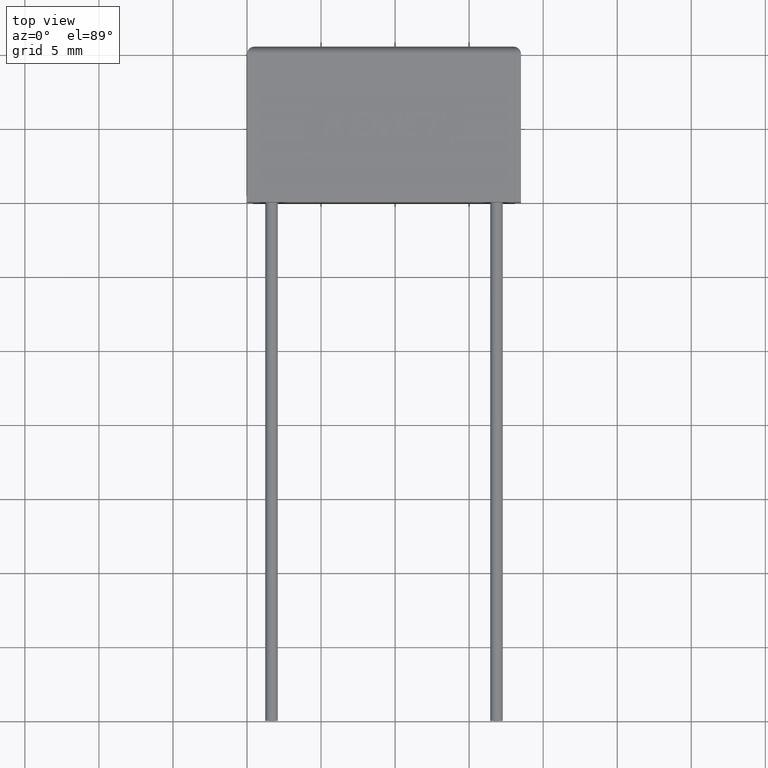
[diagram: clean part render]
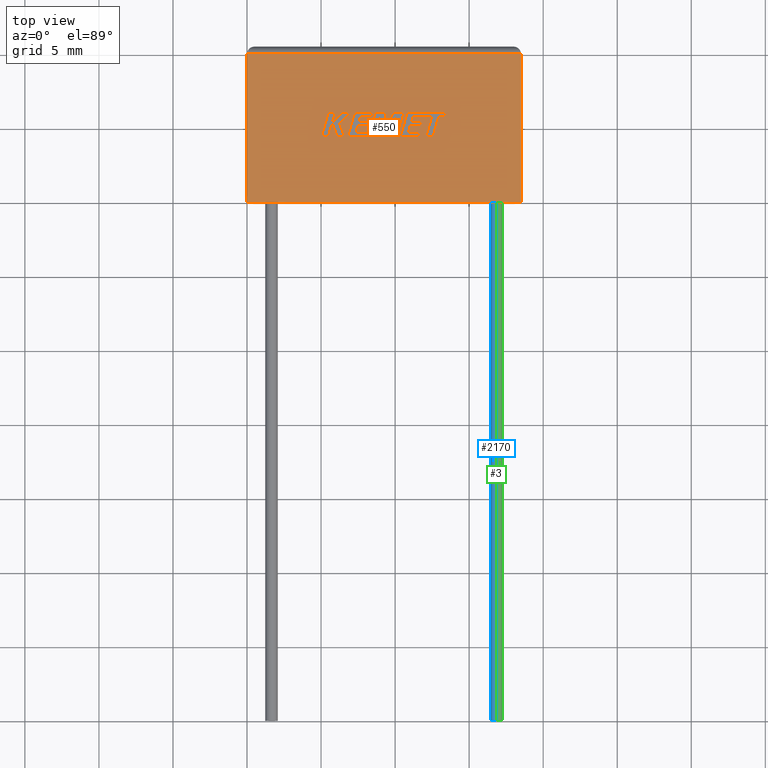
[diagram: same view with three faces highlighted in distinct colors, each labeled with its STEP entity id]
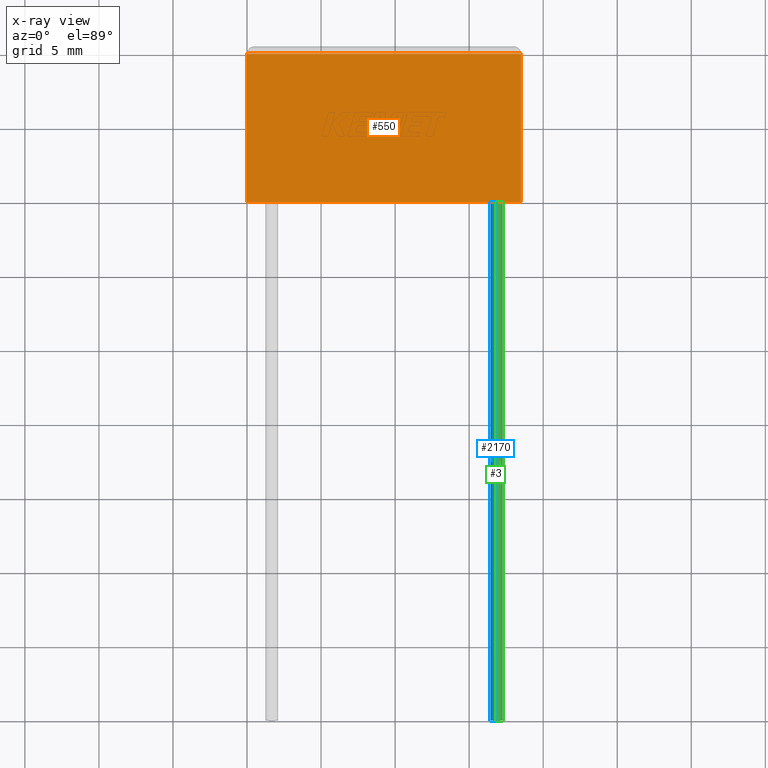
[diagram: x-ray of the same camera — body ghosted, the three highlighted faces saturated]
A machine part, top view with three faces highlighted in distinct colors.
The next image is the same camera in x-ray (body ghosted, the three faces saturated) — at least one of them is partly hidden behind the body in this view.
Their STEP definitions:

[orange] entity #550 — the highlighted planar face has unit normal (0, 0, -1).
#28 = LINE ( 'NONE', #1537, #1382 ) ;
#71 = VERTEX_POINT ( 'NONE', #2208 ) ;
#82 = EDGE_CURVE ( 'NONE', #71, #1536, #95, .T. ) ;
#95 = LINE ( 'NONE', #1103, #718 ) ;
#300 = CARTESIAN_POINT ( 'NONE',  ( 0.0000000000000000000, 10.00000000000000000, 5.200000000000000200 ) ) ;
#550 = ADVANCED_FACE ( 'NONE', ( #594 ), #879, .F. ) ;
#594 = FACE_OUTER_BOUND ( 'NONE', #1491, .T. ) ;
#672 = CARTESIAN_POINT ( 'NONE',  ( 18.50000000000000000, 9.999999999999996400, 5.200000000000000200 ) ) ;
#695 = CARTESIAN_POINT ( 'NONE',  ( 0.0000000000000000000, 0.0000000000000000000, 5.200000000000000200 ) ) ;
#718 = VECTOR ( 'NONE', #1636, 1000.000000000000000 ) ;
#787 = ORIENTED_EDGE ( 'NONE', *, *, #923, .T. ) ;
#879 = PLANE ( 'NONE',  #927 ) ;
#910 = DIRECTION ( 'NONE',  ( 0.0000000000000000000, 0.0000000000000000000, -1.000000000000000000 ) ) ;
#923 = EDGE_CURVE ( 'NONE', #1778, #1442, #1257, .T. ) ;
#927 = AXIS2_PLACEMENT_3D ( 'NONE', #695, #910, #1288 ) ;
#1020 = ORIENTED_EDGE ( 'NONE', *, *, #1130, .T. ) ;
#1064 = DIRECTION ( 'NONE',  ( -1.000000000000000000, 0.0000000000000000000, 0.0000000000000000000 ) ) ;
#1103 = CARTESIAN_POINT ( 'NONE',  ( 18.50000000000000000, 0.0000000000000000000, 5.200000000000000200 ) ) ;
#1130 = EDGE_CURVE ( 'NONE', #1442, #71, #28, .T. ) ;
#1247 = VECTOR ( 'NONE', #1064, 1000.000000000000000 ) ;
#1257 = LINE ( 'NONE', #2418, #1719 ) ;
#1288 = DIRECTION ( 'NONE',  ( -1.000000000000000000, 0.0000000000000000000, -0.0000000000000000000 ) ) ;
#1382 = VECTOR ( 'NONE', #2301, 1000.000000000000000 ) ;
#1442 = VERTEX_POINT ( 'NONE', #1792 ) ;
#1488 = EDGE_CURVE ( 'NONE', #1536, #1778, #1758, .T. ) ;
#1491 = EDGE_LOOP ( 'NONE', ( #2398, #2124, #787, #1020 ) ) ;
#1536 = VERTEX_POINT ( 'NONE', #672 ) ;
#1537 = CARTESIAN_POINT ( 'NONE',  ( 0.0000000000000000000, 0.0000000000000000000, 5.200000000000000200 ) ) ;
#1636 = DIRECTION ( 'NONE',  ( 0.0000000000000000000, 1.000000000000000000, 0.0000000000000000000 ) ) ;
#1719 = VECTOR ( 'NONE', #1827, 1000.000000000000000 ) ;
#1758 = LINE ( 'NONE', #300, #1247 ) ;
#1778 = VERTEX_POINT ( 'NONE', #1839 ) ;
#1792 = CARTESIAN_POINT ( 'NONE',  ( 0.0000000000000000000, 0.0000000000000000000, 5.200000000000000200 ) ) ;
#1827 = DIRECTION ( 'NONE',  ( -0.0000000000000000000, -1.000000000000000000, -0.0000000000000000000 ) ) ;
#1839 = CARTESIAN_POINT ( 'NONE',  ( 0.0000000000000000000, 9.999999999999996400, 5.200000000000000200 ) ) ;
#2124 = ORIENTED_EDGE ( 'NONE', *, *, #1488, .T. ) ;
#2208 = CARTESIAN_POINT ( 'NONE',  ( 18.50000000000000000, 0.0000000000000000000, 5.200000000000000200 ) ) ;
#2301 = DIRECTION ( 'NONE',  ( 1.000000000000000000, 0.0000000000000000000, 0.0000000000000000000 ) ) ;
#2398 = ORIENTED_EDGE ( 'NONE', *, *, #82, .T. ) ;
#2418 = CARTESIAN_POINT ( 'NONE',  ( 0.0000000000000000000, 0.0000000000000000000, 5.200000000000000200 ) ) ;

[blue] entity #2170 — the highlighted cylindrical surface (edge-blend (fillet) strip) has radius 0.425 mm, axis along (-0, 1, -0).
#39 = CARTESIAN_POINT ( 'NONE',  ( 16.85000000000000100, -35.00000000000000000, 2.174999999999999800 ) ) ;
#44 = ORIENTED_EDGE ( 'NONE', *, *, #2273, .T. ) ;
#88 = VERTEX_POINT ( 'NONE', #1071 ) ;
#298 = VERTEX_POINT ( 'NONE', #2096 ) ;
#366 = FACE_OUTER_BOUND ( 'NONE', #988, .T. ) ;
#396 = CIRCLE ( 'NONE', #2075, 0.4250000000000000400 ) ;
#477 = LINE ( 'NONE', #1003, #1195 ) ;
#542 = DIRECTION ( 'NONE',  ( 0.0000000000000000000, 0.0000000000000000000, -1.000000000000000000 ) ) ;
#682 = CYLINDRICAL_SURFACE ( 'NONE', #1696, 0.4250000000000000400 ) ;
#757 = CARTESIAN_POINT ( 'NONE',  ( 16.85000000000000100, -35.00000000000000000, 2.600000000000000100 ) ) ;
#781 = EDGE_CURVE ( 'NONE', #298, #88, #2101, .T. ) ;
#861 = ORIENTED_EDGE ( 'NONE', *, *, #1608, .F. ) ;
#916 = CARTESIAN_POINT ( 'NONE',  ( 16.85000000000000100, 0.0000000000000000000, 2.600000000000000100 ) ) ;
#917 = VECTOR ( 'NONE', #1361, 1000.000000000000000 ) ;
#988 = EDGE_LOOP ( 'NONE', ( #1565, #44, #1172, #861 ) ) ;
#1003 = CARTESIAN_POINT ( 'NONE',  ( 16.85000000000000100, -35.00000000000000000, 2.174999999999999800 ) ) ;
#1023 = DIRECTION ( 'NONE',  ( -0.0000000000000000000, 1.000000000000000000, -0.0000000000000000000 ) ) ;
#1071 = CARTESIAN_POINT ( 'NONE',  ( 16.85000000000000100, 0.0000000000000000000, 3.024999999999999900 ) ) ;
#1172 = ORIENTED_EDGE ( 'NONE', *, *, #781, .T. ) ;
#1178 = VERTEX_POINT ( 'NONE', #39 ) ;
#1195 = VECTOR ( 'NONE', #1023, 1000.000000000000000 ) ;
#1256 = EDGE_CURVE ( 'NONE', #1178, #1947, #477, .T. ) ;
#1361 = DIRECTION ( 'NONE',  ( -0.0000000000000000000, 1.000000000000000000, -0.0000000000000000000 ) ) ;
#1369 = CARTESIAN_POINT ( 'NONE',  ( 16.85000000000000100, -35.00000000000000000, 3.024999999999999900 ) ) ;
#1476 = DIRECTION ( 'NONE',  ( -0.0000000000000000000, 1.000000000000000000, -0.0000000000000000000 ) ) ;
#1565 = ORIENTED_EDGE ( 'NONE', *, *, #1256, .F. ) ;
#1608 = EDGE_CURVE ( 'NONE', #1947, #88, #2169, .T. ) ;
#1645 = CARTESIAN_POINT ( 'NONE',  ( 16.85000000000000100, -35.00000000000000000, 2.600000000000000100 ) ) ;
#1696 = AXIS2_PLACEMENT_3D ( 'NONE', #1645, #1476, #2220 ) ;
#1708 = DIRECTION ( 'NONE',  ( -0.0000000000000000000, 1.000000000000000000, -0.0000000000000000000 ) ) ;
#1834 = CARTESIAN_POINT ( 'NONE',  ( 16.85000000000000100, 0.0000000000000000000, 2.174999999999999800 ) ) ;
#1855 = DIRECTION ( 'NONE',  ( -0.0000000000000000000, 1.000000000000000000, -0.0000000000000000000 ) ) ;
#1947 = VERTEX_POINT ( 'NONE', #1834 ) ;
#2075 = AXIS2_PLACEMENT_3D ( 'NONE', #757, #1708, #542 ) ;
#2096 = CARTESIAN_POINT ( 'NONE',  ( 16.85000000000000100, -35.00000000000000000, 3.024999999999999900 ) ) ;
#2101 = LINE ( 'NONE', #1369, #917 ) ;
#2169 = CIRCLE ( 'NONE', #2308, 0.4250000000000000400 ) ;
#2170 = ADVANCED_FACE ( 'NONE', ( #366 ), #682, .T. ) ;
#2220 = DIRECTION ( 'NONE',  ( 0.0000000000000000000, 0.0000000000000000000, 1.000000000000000000 ) ) ;
#2273 = EDGE_CURVE ( 'NONE', #1178, #298, #396, .T. ) ;
#2308 = AXIS2_PLACEMENT_3D ( 'NONE', #916, #1855, #2446 ) ;
#2446 = DIRECTION ( 'NONE',  ( 0.0000000000000000000, 0.0000000000000000000, -1.000000000000000000 ) ) ;

[green] entity #3 — the highlighted cylindrical surface (edge-blend (fillet) strip) has radius 0.425 mm, axis along (-0, 1, -0).
#3 = ADVANCED_FACE ( 'NONE', ( #2140 ), #496, .T. ) ;
#39 = CARTESIAN_POINT ( 'NONE',  ( 16.85000000000000100, -35.00000000000000000, 2.174999999999999800 ) ) ;
#88 = VERTEX_POINT ( 'NONE', #1071 ) ;
#179 = ORIENTED_EDGE ( 'NONE', *, *, #781, .F. ) ;
#298 = VERTEX_POINT ( 'NONE', #2096 ) ;
#312 = ORIENTED_EDGE ( 'NONE', *, *, #1171, .T. ) ;
#348 = DIRECTION ( 'NONE',  ( 0.0000000000000000000, 0.0000000000000000000, -1.000000000000000000 ) ) ;
#444 = DIRECTION ( 'NONE',  ( -0.0000000000000000000, 1.000000000000000000, -0.0000000000000000000 ) ) ;
#462 = ORIENTED_EDGE ( 'NONE', *, *, #1256, .T. ) ;
#477 = LINE ( 'NONE', #1003, #1195 ) ;
#496 = CYLINDRICAL_SURFACE ( 'NONE', #824, 0.4250000000000000400 ) ;
#500 = DIRECTION ( 'NONE',  ( 0.0000000000000000000, 0.0000000000000000000, 1.000000000000000000 ) ) ;
#751 = EDGE_CURVE ( 'NONE', #88, #1947, #974, .T. ) ;
#781 = EDGE_CURVE ( 'NONE', #298, #88, #2101, .T. ) ;
#824 = AXIS2_PLACEMENT_3D ( 'NONE', #1813, #2396, #500 ) ;
#917 = VECTOR ( 'NONE', #1361, 1000.000000000000000 ) ;
#974 = CIRCLE ( 'NONE', #1244, 0.4250000000000000400 ) ;
#1003 = CARTESIAN_POINT ( 'NONE',  ( 16.85000000000000100, -35.00000000000000000, 2.174999999999999800 ) ) ;
#1023 = DIRECTION ( 'NONE',  ( -0.0000000000000000000, 1.000000000000000000, -0.0000000000000000000 ) ) ;
#1071 = CARTESIAN_POINT ( 'NONE',  ( 16.85000000000000100, 0.0000000000000000000, 3.024999999999999900 ) ) ;
#1120 = AXIS2_PLACEMENT_3D ( 'NONE', #1401, #444, #1391 ) ;
#1171 = EDGE_CURVE ( 'NONE', #298, #1178, #1744, .T. ) ;
#1178 = VERTEX_POINT ( 'NONE', #39 ) ;
#1195 = VECTOR ( 'NONE', #1023, 1000.000000000000000 ) ;
#1244 = AXIS2_PLACEMENT_3D ( 'NONE', #1298, #1323, #348 ) ;
#1256 = EDGE_CURVE ( 'NONE', #1178, #1947, #477, .T. ) ;
#1258 = EDGE_LOOP ( 'NONE', ( #312, #462, #2434, #179 ) ) ;
#1298 = CARTESIAN_POINT ( 'NONE',  ( 16.85000000000000100, 0.0000000000000000000, 2.600000000000000100 ) ) ;
#1323 = DIRECTION ( 'NONE',  ( -0.0000000000000000000, 1.000000000000000000, -0.0000000000000000000 ) ) ;
#1361 = DIRECTION ( 'NONE',  ( -0.0000000000000000000, 1.000000000000000000, -0.0000000000000000000 ) ) ;
#1369 = CARTESIAN_POINT ( 'NONE',  ( 16.85000000000000100, -35.00000000000000000, 3.024999999999999900 ) ) ;
#1391 = DIRECTION ( 'NONE',  ( 0.0000000000000000000, 0.0000000000000000000, -1.000000000000000000 ) ) ;
#1401 = CARTESIAN_POINT ( 'NONE',  ( 16.85000000000000100, -35.00000000000000000, 2.600000000000000100 ) ) ;
#1744 = CIRCLE ( 'NONE', #1120, 0.4250000000000000400 ) ;
#1813 = CARTESIAN_POINT ( 'NONE',  ( 16.85000000000000100, -35.00000000000000000, 2.600000000000000100 ) ) ;
#1834 = CARTESIAN_POINT ( 'NONE',  ( 16.85000000000000100, 0.0000000000000000000, 2.174999999999999800 ) ) ;
#1947 = VERTEX_POINT ( 'NONE', #1834 ) ;
#2096 = CARTESIAN_POINT ( 'NONE',  ( 16.85000000000000100, -35.00000000000000000, 3.024999999999999900 ) ) ;
#2101 = LINE ( 'NONE', #1369, #917 ) ;
#2140 = FACE_OUTER_BOUND ( 'NONE', #1258, .T. ) ;
#2396 = DIRECTION ( 'NONE',  ( -0.0000000000000000000, 1.000000000000000000, -0.0000000000000000000 ) ) ;
#2434 = ORIENTED_EDGE ( 'NONE', *, *, #751, .F. ) ;